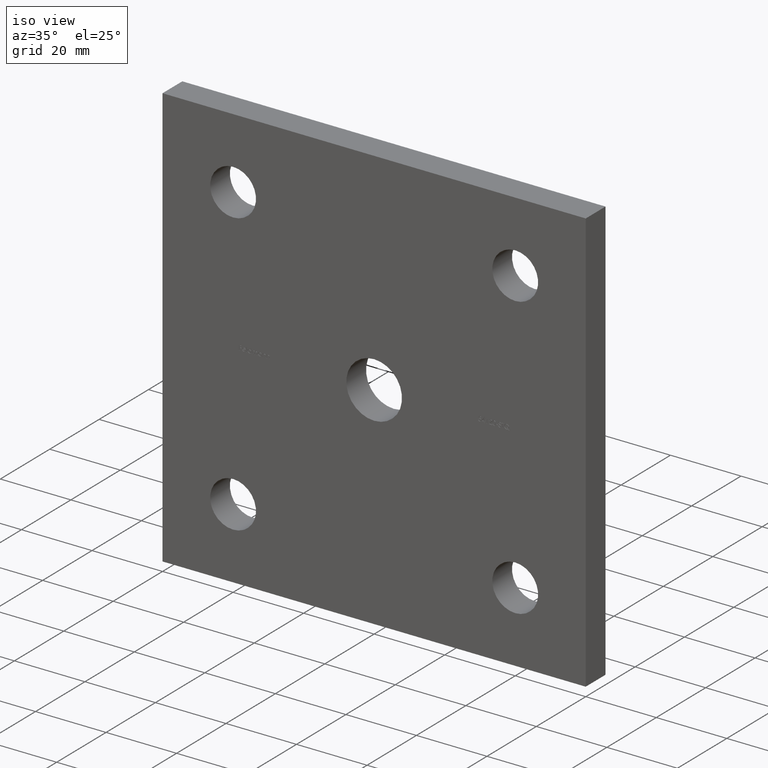
[diagram: clean part render]
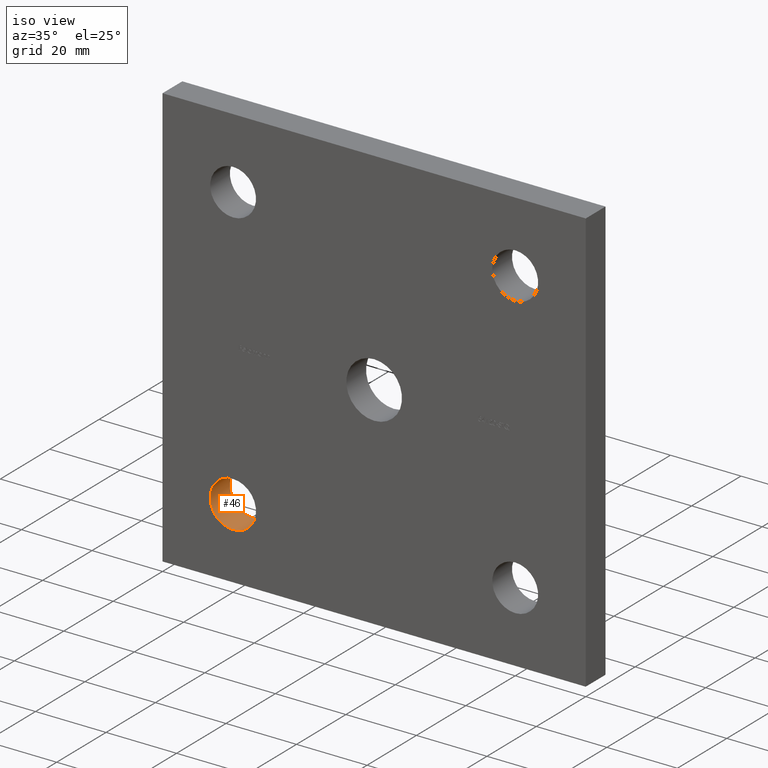
[diagram: same view with one face highlighted and labeled with its STEP entity id]
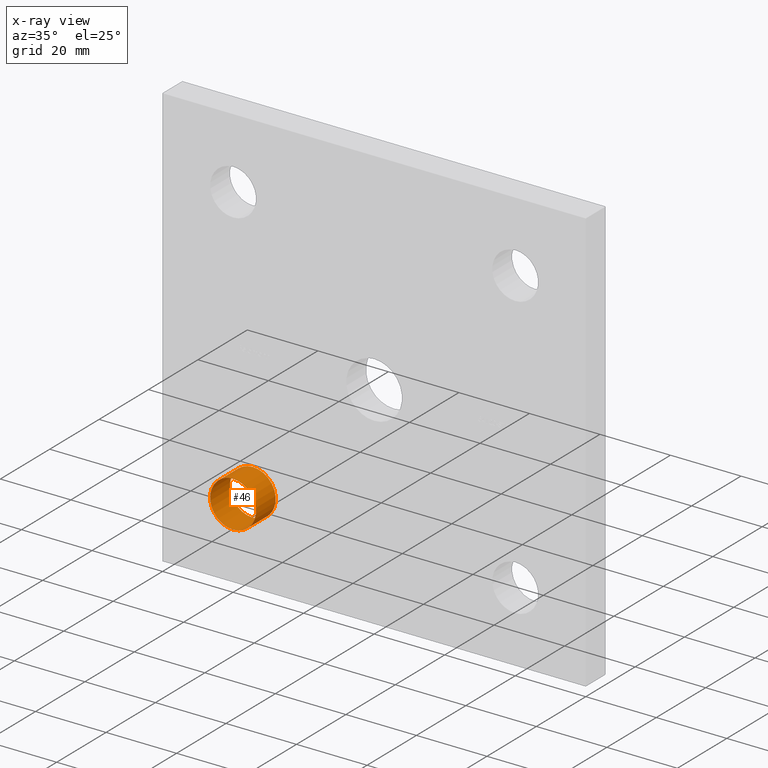
[diagram: x-ray of the same camera — body ghosted, the highlighted face saturated]
A machine part, iso view. The second image highlights one B-rep face of the part: STEP entity #46.
The next image is the same camera in x-ray: the body ghosted, the highlighted face saturated — about 0% of this face is hidden behind the body in this view.
In plain terms, the highlighted cylindrical surface (bore or boss wall) has radius 6.5 mm, axis along (-0, 1, -0).
Its self-contained STEP definition (entity closure, byte-faithful):
#46 = ADVANCED_FACE ( 'NONE', ( #2385, #8081 ), #7477, .F. ) ;
#159 = DIRECTION ( 'NONE',  ( 0.000000000000000000, 0.000000000000000000, 1.000000000000000000 ) ) ;
#262 = DIRECTION ( 'NONE',  ( 0.000000000000000000, 0.000000000000000000, 1.000000000000000000 ) ) ;
#1576 = DIRECTION ( 'NONE',  ( 0.000000000000000000, 1.000000000000000000, 0.000000000000000000 ) ) ;
#1700 = AXIS2_PLACEMENT_3D ( 'NONE', #6358, #1576, #5445 ) ;
#1717 = CIRCLE ( 'NONE', #1700, 6.499999999999999112 ) ;
#2315 = DIRECTION ( 'NONE',  ( -0.000000000000000000, 1.000000000000000000, -0.000000000000000000 ) ) ;
#2385 = FACE_OUTER_BOUND ( 'NONE', #5186, .T. ) ;
#4211 = ORIENTED_EDGE ( 'NONE', *, *, #7413, .T. ) ;
#4828 = EDGE_LOOP ( 'NONE', ( #4211 ) ) ;
#5186 = EDGE_LOOP ( 'NONE', ( #10877 ) ) ;
#5445 = DIRECTION ( 'NONE',  ( 0.000000000000000000, 0.000000000000000000, 1.000000000000000000 ) ) ;
#5688 = CARTESIAN_POINT ( 'NONE',  ( -40.00000000000000000, 0.000000000000000000, -40.00000000000000000 ) ) ;
#6358 = CARTESIAN_POINT ( 'NONE',  ( -40.00000000000000000, 8.000000000000000000, -40.00000000000000000 ) ) ;
#6733 = AXIS2_PLACEMENT_3D ( 'NONE', #11851, #2315, #262 ) ;
#6747 = VERTEX_POINT ( 'NONE', #9278 ) ;
#7413 = EDGE_CURVE ( 'NONE', #12276, #12276, #1717, .T. ) ;
#7477 = CYLINDRICAL_SURFACE ( 'NONE', #6733, 6.499999999999999112 ) ;
#7535 = CIRCLE ( 'NONE', #10778, 6.499999999999999112 ) ;
#7868 = DIRECTION ( 'NONE',  ( 0.000000000000000000, 1.000000000000000000, 0.000000000000000000 ) ) ;
#8081 = FACE_OUTER_BOUND ( 'NONE', #4828, .T. ) ;
#8323 = CARTESIAN_POINT ( 'NONE',  ( -40.00000000000000000, 8.000000000000000000, -33.50000000000000000 ) ) ;
#9278 = CARTESIAN_POINT ( 'NONE',  ( -40.00000000000000000, 0.000000000000000000, -33.50000000000000000 ) ) ;
#10204 = EDGE_CURVE ( 'NONE', #6747, #6747, #7535, .T. ) ;
#10778 = AXIS2_PLACEMENT_3D ( 'NONE', #5688, #7868, #159 ) ;
#10877 = ORIENTED_EDGE ( 'NONE', *, *, #10204, .F. ) ;
#11851 = CARTESIAN_POINT ( 'NONE',  ( -40.00000000000000000, 0.000000000000000000, -40.00000000000000000 ) ) ;
#12276 = VERTEX_POINT ( 'NONE', #8323 ) ;